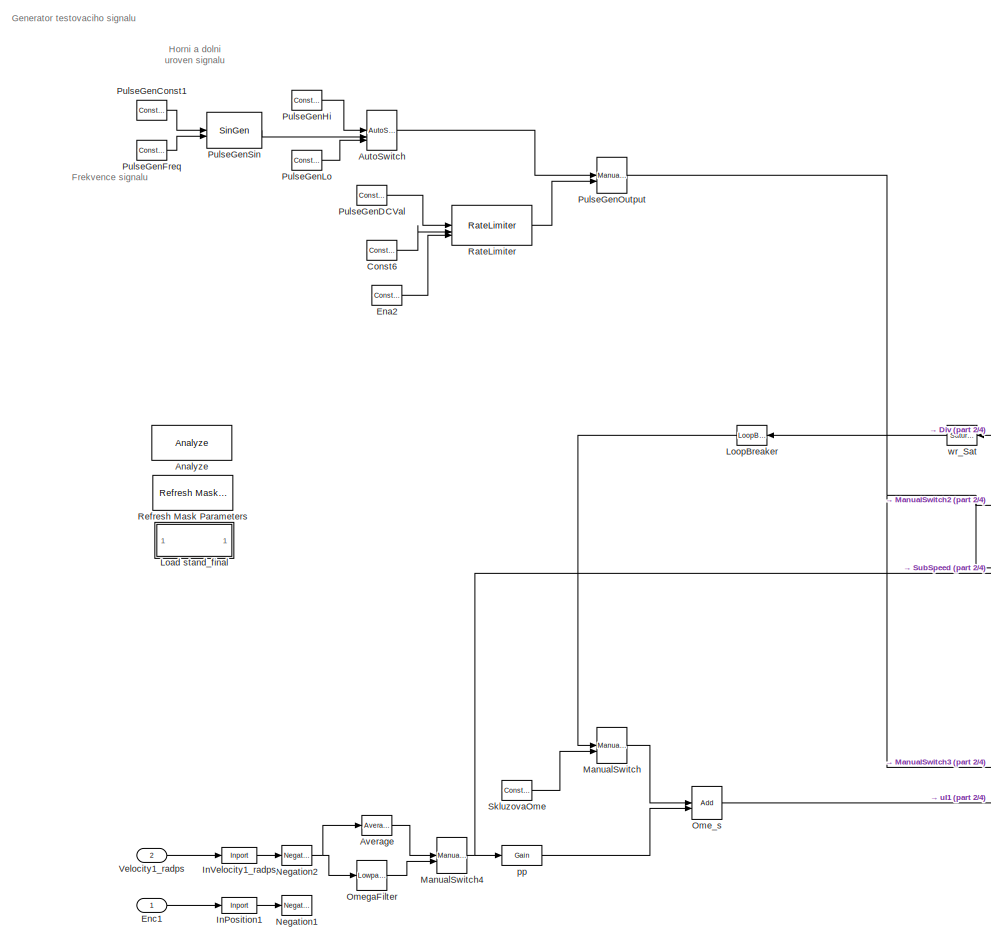
[diagram: root canvas - part 1/4, top left region]
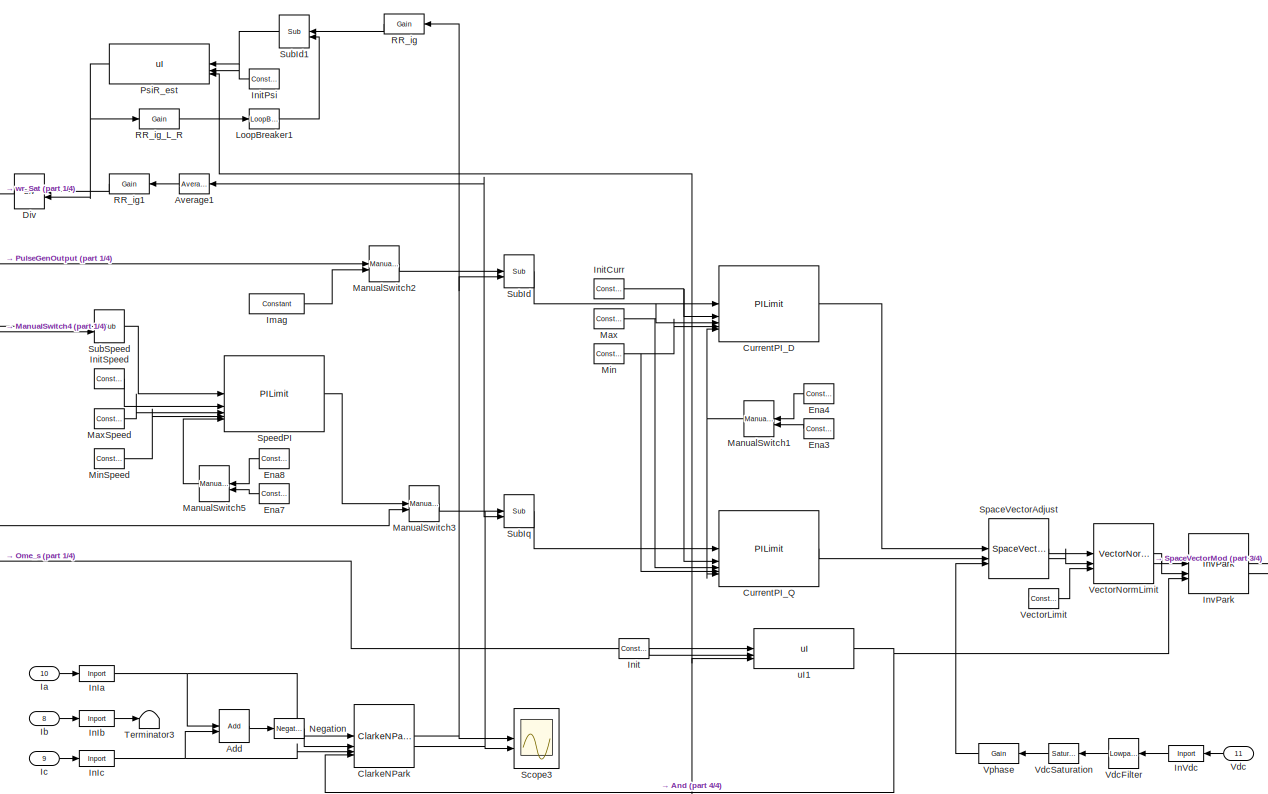
[diagram: root canvas - part 2/4, central region]
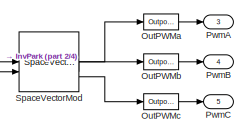
[diagram: root canvas - part 3/4, middle right region]
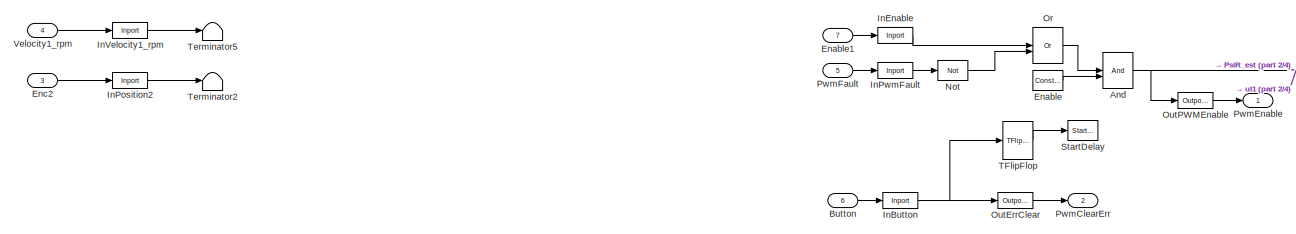
[diagram: root canvas - part 4/4, bottom center region]
MODEL slx_50eb3aeb2061
KIND model
CONFIG AbsTol = auto
CONFIG EnableMultiTasking = on
CONFIG FixedStep = auto
CONFIG MaxStep = auto
CONFIG MinStep = auto
CONFIG RelTol = 1e-3
CONFIG SampleTimeConstraint = Unconstrained
CONFIG SolverName = ode45
CONFIG StartTime = 0.0
CONFIG StopTime = 10.0
BLOCK [Reference] Add  REF=Math/Add
  SourceBlock = Math/Add
  SourceProductName = X2C Math
  SourceType = X2C - Add
BLOCK [Reference] Analyze  REF=Basic/Analyze
  SourceBlock = Basic/Analyze
  SourceProductName = X2C Basic
  SourceType = X2C System Block
BLOCK [Reference] And  REF=General/And
  SourceBlock = General/And
  SourceProductName = X2C General
  SourceType = X2C - And
BLOCK [Reference] AutoSwitch  REF=General/AutoSwitch
  SourceBlock = General/AutoSwitch
  SourceProductName = X2C General
  SourceType = X2C - AutoSwitch
BLOCK [Reference] Average  REF=Math/Average
  SourceBlock = Math/Average
  SourceProductName = X2C Math
  SourceType = X2C - Average
BLOCK [Reference] Average1  REF=Math/Average
  SourceBlock = Math/Average
  SourceProductName = X2C Math
  SourceType = X2C - Average
BLOCK [Inport] Button
  Port = 6
BLOCK [Reference] ClarkeNPark  REF=MotorControl/ClarkeNPark
  SourceBlock = MotorControl/ClarkeNPark
  SourceProductName = X2C MotorControl
  SourceType = X2C - ClarkeNPark
BLOCK [Reference] Const6  REF=General/Constant
  SourceBlock = General/Constant
  SourceProductName = X2C General
  SourceType = X2C - Constant
BLOCK [Reference] CurrentPI_D  REF=Control/PILimit
  SourceBlock = Control/PILimit
  SourceProductName = X2C Control
  SourceType = X2C - PILimit
BLOCK [Reference] CurrentPI_Q  REF=Control/PILimit
  SourceBlock = Control/PILimit
  SourceProductName = X2C Control
  SourceType = X2C - PILimit
BLOCK [Reference] Div  REF=Math/Div
  SourceBlock = Math/Div
  SourceProductName = X2C Math
  SourceType = X2C - Div
BLOCK [Reference] Ena2  REF=General/Constant
  SourceBlock = General/Constant
  SourceProductName = X2C General
  SourceType = X2C - Constant
BLOCK [Reference] Ena3  REF=General/Constant
  SourceBlock = General/Constant
  SourceProductName = X2C General
  SourceType = X2C - Constant
BLOCK [Reference] Ena4  REF=General/Constant
  SourceBlock = General/Constant
  SourceProductName = X2C General
  SourceType = X2C - Constant
BLOCK [Reference] Ena7  REF=General/Constant
  SourceBlock = General/Constant
  SourceProductName = X2C General
  SourceType = X2C - Constant
BLOCK [Reference] Ena8  REF=General/Constant
  SourceBlock = General/Constant
  SourceProductName = X2C General
  SourceType = X2C - Constant
BLOCK [Reference] Enable  REF=General/Constant
  SourceBlock = General/Constant
  SourceProductName = X2C General
  SourceType = X2C - Constant
BLOCK [Inport] Enable1
  Port = 7
BLOCK [Inport] Enc1
BLOCK [Inport] Enc2
  Port = 3
BLOCK [Inport] Ia
  Port = 10
BLOCK [Inport] Ib
  Port = 8
BLOCK [Inport] Ic
  Port = 9
BLOCK [Reference] Imag  REF=General/Constant
  SourceBlock = General/Constant
  SourceProductName = X2C General
  SourceType = X2C - Constant
BLOCK [Reference] InButton  REF=General/Inport
  SourceBlock = General/Inport
  SourceProductName = X2C General
  SourceType = X2C - Inport
BLOCK [Reference] InEnable  REF=General/Inport
  SourceBlock = General/Inport
  SourceProductName = X2C General
  SourceType = X2C - Inport
BLOCK [Reference] InIa  REF=General/Inport
  SourceBlock = General/Inport
  SourceProductName = X2C General
  SourceType = X2C - Inport
BLOCK [Reference] InIb  REF=General/Inport
  SourceBlock = General/Inport
  SourceProductName = X2C General
  SourceType = X2C - Inport
BLOCK [Reference] InIc  REF=General/Inport
  SourceBlock = General/Inport
  SourceProductName = X2C General
  SourceType = X2C - Inport
BLOCK [Reference] InPosition1  REF=General/Inport
  SourceBlock = General/Inport
  SourceProductName = X2C General
  SourceType = X2C - Inport
BLOCK [Reference] InPosition2  REF=General/Inport
  SourceBlock = General/Inport
  SourceProductName = X2C General
  SourceType = X2C - Inport
BLOCK [Reference] InPwmFault  REF=General/Inport
  SourceBlock = General/Inport
  SourceProductName = X2C General
  SourceType = X2C - Inport
BLOCK [Reference] InVdc  REF=General/Inport
  SourceBlock = General/Inport
  SourceProductName = X2C General
  SourceType = X2C - Inport
BLOCK [Reference] InVelocity1_radps  REF=General/Inport
  SourceBlock = General/Inport
  SourceProductName = X2C General
  SourceType = X2C - Inport
BLOCK [Reference] InVelocity1_rpm  REF=General/Inport
  SourceBlock = General/Inport
  SourceProductName = X2C General
  SourceType = X2C - Inport
BLOCK [Reference] Init  REF=General/Constant
  SourceBlock = General/Constant
  SourceProductName = X2C General
  SourceType = X2C - Constant
BLOCK [Reference] InitCurr  REF=General/Constant
  SourceBlock = General/Constant
  SourceProductName = X2C General
  SourceType = X2C - Constant
BLOCK [Reference] InitPsi  REF=General/Constant
  SourceBlock = General/Constant
  SourceProductName = X2C General
  SourceType = X2C - Constant
BLOCK [Reference] InitSpeed  REF=General/Constant
  SourceBlock = General/Constant
  SourceProductName = X2C General
  SourceType = X2C - Constant
BLOCK [Reference] InvPark  REF=MotorControl/InvPark
  SourceBlock = MotorControl/InvPark
  SourceProductName = X2C MotorControl
  SourceType = X2C - InvPark
BLOCK [SubSystem] Load stand_final
  InitFcn = stand_final
  OpenFcn = stand_final
BLOCK [Reference] LoopBreaker  REF=General/LoopBreaker
  SourceBlock = General/LoopBreaker
  SourceProductName = X2C General
  SourceType = X2C - LoopBreaker
BLOCK [Reference] LoopBreaker1  REF=General/LoopBreaker
  SourceBlock = General/LoopBreaker
  SourceProductName = X2C General
  SourceType = X2C - LoopBreaker
BLOCK [Reference] ManualSwitch  REF=General/ManualSwitch
  SourceBlock = General/ManualSwitch
  SourceProductName = X2C General
  SourceType = X2C - ManualSwitch
BLOCK [Reference] ManualSwitch1  REF=General/ManualSwitch
  SourceBlock = General/ManualSwitch
  SourceProductName = X2C General
  SourceType = X2C - ManualSwitch
BLOCK [Reference] ManualSwitch2  REF=General/ManualSwitch
  SourceBlock = General/ManualSwitch
  SourceProductName = X2C General
  SourceType = X2C - ManualSwitch
BLOCK [Reference] ManualSwitch3  REF=General/ManualSwitch
  SourceBlock = General/ManualSwitch
  SourceProductName = X2C General
  SourceType = X2C - ManualSwitch
BLOCK [Reference] ManualSwitch4  REF=General/ManualSwitch
  SourceBlock = General/ManualSwitch
  SourceProductName = X2C General
  SourceType = X2C - ManualSwitch
BLOCK [Reference] ManualSwitch5  REF=General/ManualSwitch
  SourceBlock = General/ManualSwitch
  SourceProductName = X2C General
  SourceType = X2C - ManualSwitch
BLOCK [Reference] Max  REF=General/Constant
  SourceBlock = General/Constant
  SourceProductName = X2C General
  SourceType = X2C - Constant
BLOCK [Reference] MaxSpeed  REF=General/Constant
  SourceBlock = General/Constant
  SourceProductName = X2C General
  SourceType = X2C - Constant
BLOCK [Reference] Min  REF=General/Constant
  SourceBlock = General/Constant
  SourceProductName = X2C General
  SourceType = X2C - Constant
BLOCK [Reference] MinSpeed  REF=General/Constant
  SourceBlock = General/Constant
  SourceProductName = X2C General
  SourceType = X2C - Constant
BLOCK [Reference] Negation  REF=Math/Negation
  SourceBlock = Math/Negation
  SourceProductName = X2C Math
  SourceType = X2C - Negation
BLOCK [Reference] Negation1  REF=Math/Negation
  SourceBlock = Math/Negation
  SourceProductName = X2C Math
  SourceType = X2C - Negation
BLOCK [Reference] Negation2  REF=Math/Negation
  SourceBlock = Math/Negation
  SourceProductName = X2C Math
  SourceType = X2C - Negation
BLOCK [Reference] Not  REF=General/Not
  SourceBlock = General/Not
  SourceProductName = X2C General
  SourceType = X2C - Not
BLOCK [Reference] Ome_s  REF=Math/Add
  SourceBlock = Math/Add
  SourceProductName = X2C Math
  SourceType = X2C - Add
BLOCK [Reference] OmegaFilter  REF=Filter/LowpassBiQ
  SourceBlock = Filter/LowpassBiQ
  SourceProductName = X2C Filter
  SourceType = X2C - LowpassBiQ
BLOCK [Reference] Or  REF=General/Or
  SourceBlock = General/Or
  SourceProductName = X2C General
  SourceType = X2C - Or
BLOCK [Reference] OutErrClear  REF=General/Outport
  SourceBlock = General/Outport
  SourceProductName = X2C General
  SourceType = X2C - Outport
BLOCK [Reference] OutPWMEnable  REF=General/Outport
  SourceBlock = General/Outport
  SourceProductName = X2C General
  SourceType = X2C - Outport
BLOCK [Reference] OutPWMa  REF=General/Outport
  SourceBlock = General/Outport
  SourceProductName = X2C General
  SourceType = X2C - Outport
BLOCK [Reference] OutPWMb  REF=General/Outport
  SourceBlock = General/Outport
  SourceProductName = X2C General
  SourceType = X2C - Outport
BLOCK [Reference] OutPWMc  REF=General/Outport
  SourceBlock = General/Outport
  SourceProductName = X2C General
  SourceType = X2C - Outport
BLOCK [Reference] PsiR_est  REF=Control/uI
  SourceBlock = Control/uI
  SourceProductName = X2C Control
  SourceType = X2C - uI
BLOCK [Reference] PulseGenConst1  REF=General/Constant
  SourceBlock = General/Constant
  SourceProductName = X2C General
  SourceType = X2C - Constant
BLOCK [Reference] PulseGenDCVal  REF=General/Constant
  SourceBlock = General/Constant
  SourceProductName = X2C General
  SourceType = X2C - Constant
BLOCK [Reference] PulseGenFreq  REF=General/Constant
  SourceBlock = General/Constant
  SourceProductName = X2C General
  SourceType = X2C - Constant
BLOCK [Reference] PulseGenHi  REF=General/Constant
  SourceBlock = General/Constant
  SourceProductName = X2C General
  SourceType = X2C - Constant
BLOCK [Reference] PulseGenLo  REF=General/Constant
  SourceBlock = General/Constant
  SourceProductName = X2C General
  SourceType = X2C - Constant
BLOCK [Reference] PulseGenOutput  REF=General/ManualSwitch
  SourceBlock = General/ManualSwitch
  SourceProductName = X2C General
  SourceType = X2C - ManualSwitch
BLOCK [Reference] PulseGenSin  REF=General/SinGen
  SourceBlock = General/SinGen
  SourceProductName = X2C General
  SourceType = X2C - SinGen
BLOCK [Outport] PwmA
  Port = 3
BLOCK [Outport] PwmB
  Port = 4
BLOCK [Outport] PwmC
  Port = 5
BLOCK [Outport] PwmClearErr
  Port = 2
BLOCK [Outport] PwmEnable
BLOCK [Inport] PwmFault
  Port = 5
BLOCK [Reference] RR_ig  REF=General/Gain
  SourceBlock = General/Gain
  SourceProductName = X2C General
  SourceType = X2C - Gain
BLOCK [Reference] RR_ig1  REF=General/Gain
  SourceBlock = General/Gain
  SourceProductName = X2C General
  SourceType = X2C - Gain
BLOCK [Reference] RR_ig_L_R  REF=General/Gain
  SourceBlock = General/Gain
  SourceProductName = X2C General
  SourceType = X2C - Gain
BLOCK [Reference] RateLimiter  REF=General/RateLimiter
  SourceBlock = General/RateLimiter
  SourceProductName = X2C General
  SourceType = X2C - RateLimiter
BLOCK [Reference] Refresh Mask Parameters  REF=Basic/Refresh Mask Parameters
  SourceBlock = Basic/Refresh Mask Parameters
  SourceProductName = X2C Basic
  SourceType = X2C System Block
BLOCK [Scope] Scope3
  Floating = off
  NameLocation = top
  NumInputPorts = 2
  ScopeSpecificationString = Simulink.scopes.TimeScopeBlockCfg('CurrentConfiguration', extmgr.ConfigurationSet(extmgr.Configuration('Core','General UI',true),extmgr.Configuration('Core','Source UI',true),extmgr.Configuration('Sources','WiredSimulink',true,'DataLoggingVariableName','ScopeData1'),extmgr.Configuration('Visuals','Time Domain',true,'SerializedDisplays',{struct('MinYLimReal','-0.45212','MaxYLimReal','2.25034','YLab...<+2044ch>
BLOCK [Reference] SkluzovaOme  REF=General/Constant
  SourceBlock = General/Constant
  SourceProductName = X2C General
  SourceType = X2C - Constant
BLOCK [Reference] SpaceVectorAdjust  REF=MotorControl/SpaceVectorAdjust
  SourceBlock = MotorControl/SpaceVectorAdjust
  SourceProductName = X2C MotorControl
  SourceType = X2C - SpaceVectorAdjust
BLOCK [Reference] SpaceVectorMod  REF=MotorControl/SpaceVectorMod
  SourceBlock = MotorControl/SpaceVectorMod
  SourceProductName = X2C MotorControl
  SourceType = X2C - SpaceVectorMod
BLOCK [Reference] SpeedPI  REF=Control/PILimit
  SourceBlock = Control/PILimit
  SourceProductName = X2C Control
  SourceType = X2C - PILimit
BLOCK [Reference] StartDelay  REF=StateControl/StartDelay
  Commented = on
  SourceBlock = StateControl/StartDelay
  SourceProductName = X2C StateControl
  SourceType = X2C - StartDelay
BLOCK [Reference] SubId  REF=Math/Sub
  SourceBlock = Math/Sub
  SourceProductName = X2C Math
  SourceType = X2C - Sub
BLOCK [Reference] SubId1  REF=Math/Sub
  SourceBlock = Math/Sub
  SourceProductName = X2C Math
  SourceType = X2C - Sub
BLOCK [Reference] SubIq  REF=Math/Sub
  SourceBlock = Math/Sub
  SourceProductName = X2C Math
  SourceType = X2C - Sub
BLOCK [Reference] SubSpeed  REF=Math/Sub
  SourceBlock = Math/Sub
  SourceProductName = X2C Math
  SourceType = X2C - Sub
BLOCK [Reference] TFlipFlop  REF=StateControl/TFlipFlop
  SourceBlock = StateControl/TFlipFlop
  SourceProductName = X2C StateControl
  SourceType = X2C - TFlipFlop
BLOCK [Terminator] Terminator2
BLOCK [Terminator] Terminator3
BLOCK [Terminator] Terminator5
BLOCK [Inport] Vdc
  Port = 11
BLOCK [Reference] VdcFilter  REF=Filter/LowpassBiQ
  SourceBlock = Filter/LowpassBiQ
  SourceProductName = X2C Filter
  SourceType = X2C - LowpassBiQ
BLOCK [Reference] VdcSaturation  REF=General/Saturation
  SourceBlock = General/Saturation
  SourceProductName = X2C General
  SourceType = X2C - Saturation
BLOCK [Reference] VectorLimit  REF=General/Constant
  SourceBlock = General/Constant
  SourceProductName = X2C General
  SourceType = X2C - Constant
BLOCK [Reference] VectorNormLimit  REF=MotorControl/VectorNormLimit
  SourceBlock = MotorControl/VectorNormLimit
  SourceProductName = X2C MotorControl
  SourceType = X2C - VectorNormLimit
BLOCK [Inport] Velocity1_radps
  Port = 2
BLOCK [Inport] Velocity1_rpm
  Port = 4
BLOCK [Reference] Vphase  REF=General/Gain
  SourceBlock = General/Gain
  SourceProductName = X2C General
  SourceType = X2C - Gain
BLOCK [Reference] pp  REF=General/Gain
  SourceBlock = General/Gain
  SourceProductName = X2C General
  SourceType = X2C - Gain
BLOCK [Reference] uI1  REF=Control/uI
  SourceBlock = Control/uI
  SourceProductName = X2C Control
  SourceType = X2C - uI
BLOCK [Reference] wr_Sat  REF=General/Saturation
  SourceBlock = General/Saturation
  SourceProductName = X2C General
  SourceType = X2C - Saturation
ANNOTATION (root): Frekvence signalu
ANNOTATION (root): Generator testovaciho signalu
ANNOTATION (root): Horni a dolni uroven signalu
LINE Add:1 -> Negation:1
NET And:1 -> OutPWMEnable:1, PsiR_est:3, uI1:3
LINE AutoSwitch:1 -> PulseGenOutput:1
LINE Average1:1 -> RR_ig1:1
LINE Average:1 -> ManualSwitch4:1
LINE Button:1 -> InButton:1
NET ClarkeNPark:1 -> RR_ig:1, Scope3:1, SubId:2
NET ClarkeNPark:2 -> Average1:1, Scope3:2, SubIq:2
LINE Const6:1 -> RateLimiter:2
LINE CurrentPI_D:1 -> SpaceVectorAdjust:1
LINE CurrentPI_Q:1 -> SpaceVectorAdjust:2
LINE Div:1 -> wr_Sat:1
LINE Ena2:1 -> RateLimiter:3
LINE Ena3:1 -> ManualSwitch1:2
LINE Ena4:1 -> ManualSwitch1:1
LINE Ena7:1 -> ManualSwitch5:2
LINE Ena8:1 -> ManualSwitch5:1
LINE Enable1:1 -> InEnable:1
LINE Enable:1 -> And:2
LINE Enc1:1 -> InPosition1:1
LINE Enc2:1 -> InPosition2:1
LINE Ia:1 -> InIa:1
LINE Ib:1 -> InIb:1
LINE Ic:1 -> InIc:1
LINE Imag:1 -> ManualSwitch2:2
NET InButton:1 -> OutErrClear:1, TFlipFlop:1
LINE InEnable:1 -> Or:1
NET InIa:1 -> Add:1, ClarkeNPark:1
LINE InIb:1 -> Terminator3:1
NET InIc:1 -> Add:2, ClarkeNPark:3
LINE InPosition1:1 -> Negation1:1
LINE InPosition2:1 -> Terminator2:1
LINE InPwmFault:1 -> Not:1
LINE InVdc:1 -> VdcFilter:1
LINE InVelocity1_radps:1 -> Negation2:1
LINE InVelocity1_rpm:1 -> Terminator5:1
LINE Init:1 -> uI1:2
NET InitCurr:1 -> CurrentPI_D:2, CurrentPI_Q:2
LINE InitPsi:1 -> PsiR_est:2
LINE InitSpeed:1 -> SpeedPI:2
LINE InvPark:1 -> SpaceVectorMod:1
LINE InvPark:2 -> SpaceVectorMod:2
LINE LoopBreaker1:1 -> SubId1:2
LINE LoopBreaker:1 -> ManualSwitch:1
NET ManualSwitch1:1 -> CurrentPI_D:5, CurrentPI_Q:5
LINE ManualSwitch2:1 -> SubId:1
LINE ManualSwitch3:1 -> SubIq:1
NET ManualSwitch4:1 -> SubSpeed:2, pp:1
LINE ManualSwitch5:1 -> SpeedPI:5
LINE ManualSwitch:1 -> Ome_s:1
NET Max:1 -> CurrentPI_D:3, CurrentPI_Q:3
LINE MaxSpeed:1 -> SpeedPI:3
NET Min:1 -> CurrentPI_D:4, CurrentPI_Q:4
LINE MinSpeed:1 -> SpeedPI:4
NET Negation2:1 -> Average:1, OmegaFilter:1
LINE Negation:1 -> ClarkeNPark:2
LINE Not:1 -> Or:2
LINE Ome_s:1 -> uI1:1
LINE OmegaFilter:1 -> ManualSwitch4:2
LINE Or:1 -> And:1
LINE OutErrClear:1 -> PwmClearErr:1
LINE OutPWMEnable:1 -> PwmEnable:1
LINE OutPWMa:1 -> PwmA:1
LINE OutPWMb:1 -> PwmB:1
LINE OutPWMc:1 -> PwmC:1
NET PsiR_est:1 -> Div:2, RR_ig_L_R:1
LINE PulseGenConst1:1 -> PulseGenSin:1
LINE PulseGenDCVal:1 -> RateLimiter:1
LINE PulseGenFreq:1 -> PulseGenSin:2
LINE PulseGenHi:1 -> AutoSwitch:1
LINE PulseGenLo:1 -> AutoSwitch:3
NET PulseGenOutput:1 -> ManualSwitch2:1, ManualSwitch3:2, SubSpeed:1
LINE PulseGenSin:1 -> AutoSwitch:2
LINE PwmFault:1 -> InPwmFault:1
LINE RR_ig1:1 -> Div:1
LINE RR_ig:1 -> SubId1:1
LINE RR_ig_L_R:1 -> LoopBreaker1:1
LINE RateLimiter:1 -> PulseGenOutput:2
LINE SkluzovaOme:1 -> ManualSwitch:2
LINE SpaceVectorAdjust:1 -> VectorNormLimit:1
LINE SpaceVectorAdjust:2 -> VectorNormLimit:2
LINE SpaceVectorMod:1 -> OutPWMa:1
LINE SpaceVectorMod:2 -> OutPWMb:1
LINE SpaceVectorMod:3 -> OutPWMc:1
LINE SpeedPI:1 -> ManualSwitch3:1
LINE SubId1:1 -> PsiR_est:1
LINE SubId:1 -> CurrentPI_D:1
LINE SubIq:1 -> CurrentPI_Q:1
LINE SubSpeed:1 -> SpeedPI:1
LINE TFlipFlop:1 -> StartDelay:1
LINE Vdc:1 -> InVdc:1
LINE VdcFilter:1 -> VdcSaturation:1
LINE VdcSaturation:1 -> Vphase:1
LINE VectorLimit:1 -> VectorNormLimit:3
LINE VectorNormLimit:1 -> InvPark:1
LINE VectorNormLimit:2 -> InvPark:2
LINE Velocity1_radps:1 -> InVelocity1_radps:1
LINE Velocity1_rpm:1 -> InVelocity1_rpm:1
LINE Vphase:1 -> SpaceVectorAdjust:3
LINE pp:1 -> Ome_s:2
NET uI1:1 -> ClarkeNPark:4, InvPark:3
LINE wr_Sat:1 -> LoopBreaker:1
note: NET lines group one-source signal fan-out (src -> all destinations, sorted); 1:1 wires keep LINE
